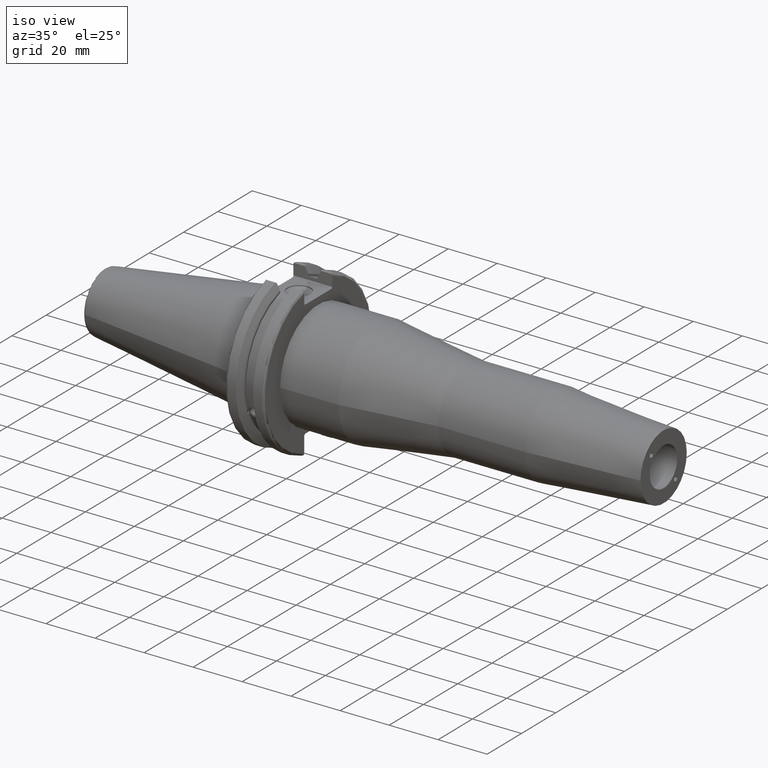
[diagram: clean part render]
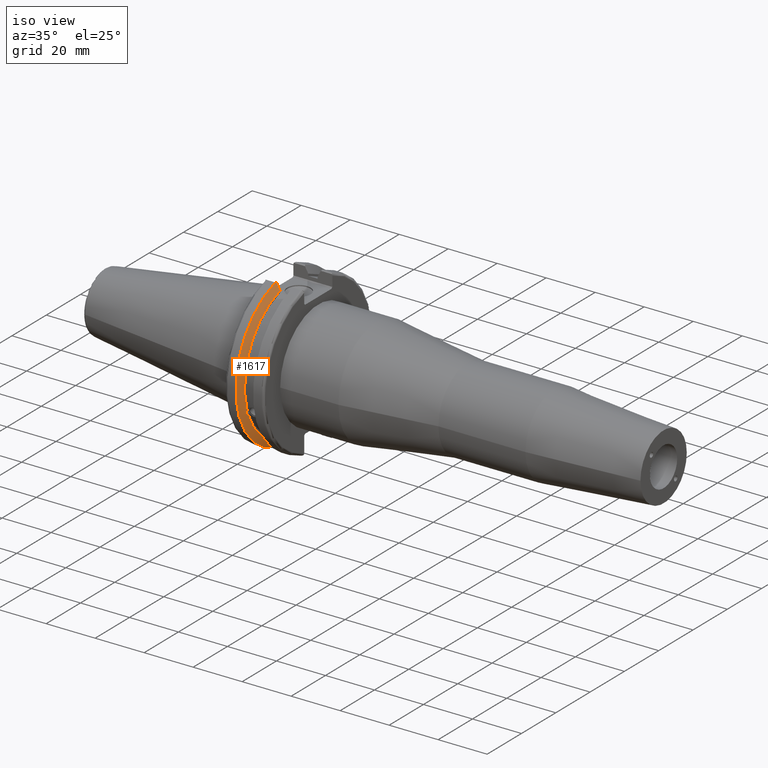
[diagram: same view with one face highlighted and labeled with its STEP entity id]
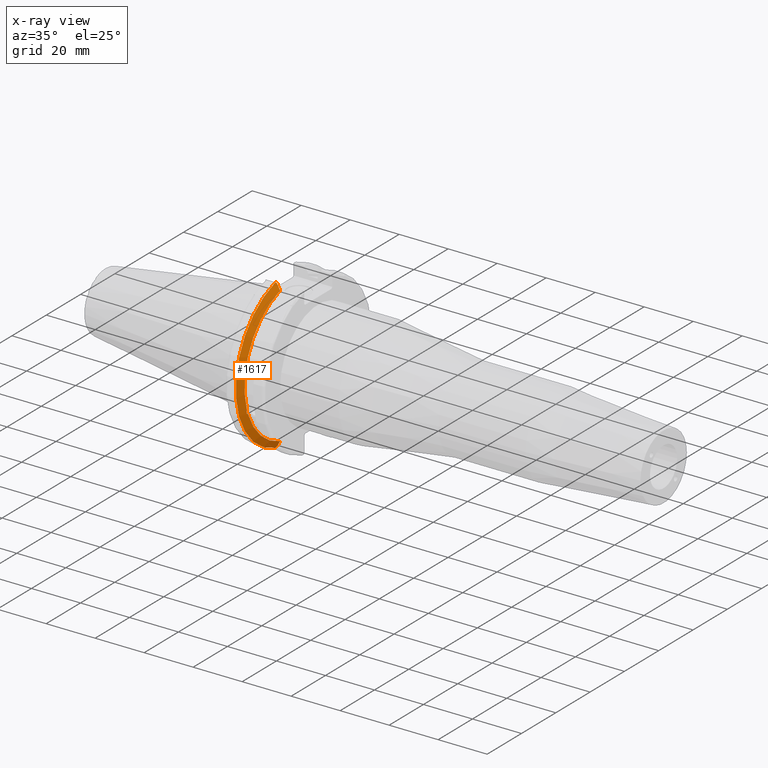
[diagram: x-ray of the same camera — body ghosted, the highlighted face saturated]
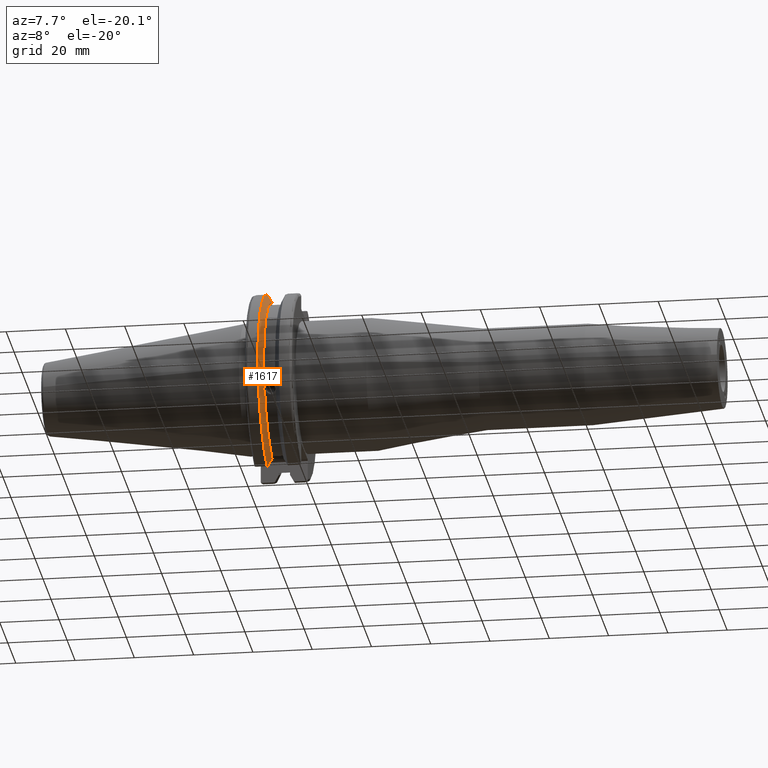
[diagram: same view with one face highlighted and labeled with its STEP entity id]
A machine part, iso view. The second image highlights one B-rep face of the part: STEP entity #1617.
The next image is the same camera in x-ray: the body ghosted, the highlighted face saturated — about 0% of this face is hidden behind the body in this view.
A second angle (auxiliary view) of the same face is appended — the face is thin or edge-on in the first view.
In plain terms, the highlighted conical surface has half-angle 60 deg.
Its self-contained STEP definition (entity closure, byte-faithful):
#31=(
BOUNDED_CURVE()
B_SPLINE_CURVE(2,(#2903,#2904,#2905),.UNSPECIFIED.,.F.,.F.)
B_SPLINE_CURVE_WITH_KNOTS((3,3),(0.,0.276549142796136),.UNSPECIFIED.)
CURVE()
GEOMETRIC_REPRESENTATION_ITEM()
RATIONAL_B_SPLINE_CURVE((1.,1.00095203903316,1.00031614444813))
REPRESENTATION_ITEM('')
);
#32=(
BOUNDED_CURVE()
B_SPLINE_CURVE(2,(#2915,#2916,#2917),.UNSPECIFIED.,.F.,.F.)
B_SPLINE_CURVE_WITH_KNOTS((3,3),(0.0550586467392022,0.33160778953585),
 .UNSPECIFIED.)
CURVE()
GEOMETRIC_REPRESENTATION_ITEM()
RATIONAL_B_SPLINE_CURVE((1.00031614445148,1.00095203904325,1.))
REPRESENTATION_ITEM('')
);
#33=(
BOUNDED_CURVE()
B_SPLINE_CURVE(2,(#2950,#2951,#2952),.UNSPECIFIED.,.F.,.F.)
B_SPLINE_CURVE_WITH_KNOTS((3,3),(0.,0.0639048713676282),.UNSPECIFIED.)
CURVE()
GEOMETRIC_REPRESENTATION_ITEM()
RATIONAL_B_SPLINE_CURVE((1.,1.00028444218284,1.00047644010574))
REPRESENTATION_ITEM('')
);
#34=(
BOUNDED_CURVE()
B_SPLINE_CURVE(2,(#2958,#2959,#2960),.UNSPECIFIED.,.F.,.F.)
B_SPLINE_CURVE_WITH_KNOTS((3,3),(0.329353533631205,0.393258405001025),
 .UNSPECIFIED.)
CURVE()
GEOMETRIC_REPRESENTATION_ITEM()
RATIONAL_B_SPLINE_CURVE((1.00047644010572,1.00028444218283,1.))
REPRESENTATION_ITEM('')
);
#98=B_SPLINE_CURVE_WITH_KNOTS('',3,(#2496,#2497,#2498,#2499,#2500,#2501,
#2502,#2503,#2504,#2505,#2506,#2507,#2508,#2509),.UNSPECIFIED.,.F.,.F.,
(4,2,2,2,2,2,4),(0.451995700189024,0.464547828547663,0.504528771685167,
0.544509714822672,0.584490657960178,0.624471601097683,0.63702372945632),
 .UNSPECIFIED.);
#263=FACE_OUTER_BOUND('',#372,.T.);
#372=EDGE_LOOP('',(#1500,#1501,#1502,#1503,#1504,#1505,#1506,#1507));
#602=CIRCLE('',#1712,28.9593772964944);
#626=CIRCLE('',#1771,31.75);
#644=CIRCLE('',#1822,28.9593772964944);
#683=VERTEX_POINT('',#2493);
#684=VERTEX_POINT('',#2495);
#701=VERTEX_POINT('',#2588);
#773=VERTEX_POINT('',#2900);
#774=VERTEX_POINT('',#2902);
#777=VERTEX_POINT('',#2914);
#781=VERTEX_POINT('',#2948);
#782=VERTEX_POINT('',#2954);
#857=EDGE_CURVE('',#684,#683,#98,.T.);
#881=EDGE_CURVE('',#684,#701,#602,.T.);
#976=EDGE_CURVE('',#774,#773,#31,.T.);
#982=EDGE_CURVE('',#777,#701,#32,.T.);
#990=EDGE_CURVE('',#781,#773,#33,.T.);
#992=EDGE_CURVE('',#781,#782,#626,.T.);
#993=EDGE_CURVE('',#777,#782,#34,.T.);
#1037=EDGE_CURVE('',#774,#683,#644,.T.);
#1500=ORIENTED_EDGE('',*,*,#857,.T.);
#1501=ORIENTED_EDGE('',*,*,#1037,.F.);
#1502=ORIENTED_EDGE('',*,*,#976,.T.);
#1503=ORIENTED_EDGE('',*,*,#990,.F.);
#1504=ORIENTED_EDGE('',*,*,#992,.T.);
#1505=ORIENTED_EDGE('',*,*,#993,.F.);
#1506=ORIENTED_EDGE('',*,*,#982,.T.);
#1507=ORIENTED_EDGE('',*,*,#881,.F.);
#1527=CONICAL_SURFACE('',#1821,30.3546886482472,1.0471975511966);
#1617=ADVANCED_FACE('',(#263),#1527,.T.);
#1712=AXIS2_PLACEMENT_3D('',#2589,#1994,#1995);
#1771=AXIS2_PLACEMENT_3D('',#2956,#2163,#2164);
#1821=AXIS2_PLACEMENT_3D('',#3076,#2284,#2285);
#1822=AXIS2_PLACEMENT_3D('',#3077,#2286,#2287);
#1994=DIRECTION('center_axis',(1.,0.,0.));
#1995=DIRECTION('ref_axis',(0.,0.,-1.));
#2163=DIRECTION('center_axis',(1.,0.,0.));
#2164=DIRECTION('ref_axis',(0.,0.,-1.));
#2284=DIRECTION('center_axis',(-1.,0.,0.));
#2285=DIRECTION('ref_axis',(0.,-1.,-1.22464679914735E-16));
#2286=DIRECTION('center_axis',(1.,0.,0.));
#2287=DIRECTION('ref_axis',(0.,0.,-1.));
#2493=CARTESIAN_POINT('',(9.2191,-27.4956274489925,-9.09043478536245));
#2495=CARTESIAN_POINT('',(9.2191,-26.9060914640648,-10.7101715919071));
#2496=CARTESIAN_POINT('Ctrl Pts',(9.2191,-26.9060914640648,-10.7101715919071));
#2497=CARTESIAN_POINT('Ctrl Pts',(9.20497959280038,-26.9406927482839,-10.6893765730703));
#2498=CARTESIAN_POINT('Ctrl Pts',(9.19150701821433,-26.9744191989197,-10.6676007180673));
#2499=CARTESIAN_POINT('Ctrl Pts',(9.13811855884095,-27.1113422433189,-10.5723885976054));
#2500=CARTESIAN_POINT('Ctrl Pts',(9.09998029158246,-27.2180531796526,-10.4801333026531));
#2501=CARTESIAN_POINT('Ctrl Pts',(9.04778935539424,-27.3968610665578,-10.2639559818059));
#2502=CARTESIAN_POINT('Ctrl Pts',(9.0341,-27.4684373304961,-10.139516340139));
#2503=CARTESIAN_POINT('Ctrl Pts',(9.0341,-27.559599249844,-9.8890510252165));
#2504=CARTESIAN_POINT('Ctrl Pts',(9.04778935539424,-27.5847569104122,-9.74771639360671));
#2505=CARTESIAN_POINT('Ctrl Pts',(9.09998029158246,-27.5867382255984,-9.46717946402648));
#2506=CARTESIAN_POINT('Ctrl Pts',(9.13811855884095,-27.5642934663232,-9.32791534028655));
#2507=CARTESIAN_POINT('Ctrl Pts',(9.19150701821434,-27.5206055003512,-9.16696618806877));
#2508=CARTESIAN_POINT('Ctrl Pts',(9.20497959280038,-27.5087667900418,-9.12860597076217));
#2509=CARTESIAN_POINT('Ctrl Pts',(9.2191,-27.4956274489925,-9.09043478536245));
#2588=CARTESIAN_POINT('',(9.2191,-8.19,-27.7771386827498));
#2589=CARTESIAN_POINT('Origin',(9.2191,0.,0.));
#2900=CARTESIAN_POINT('',(7.88668530351257,-8.19,30.1755016258903));
#2902=CARTESIAN_POINT('',(9.2191,-8.19,27.7771386827498));
#2903=CARTESIAN_POINT('Ctrl Pts',(9.2191,-8.19,27.7771386827498));
#2904=CARTESIAN_POINT('Ctrl Pts',(8.58046356152393,-8.19,28.9303689539705));
#2905=CARTESIAN_POINT('Ctrl Pts',(7.88668530351257,-8.19,30.1755016258903));
#2914=CARTESIAN_POINT('',(7.88668530351256,-8.19,-30.1755016258903));
#2915=CARTESIAN_POINT('Ctrl Pts',(7.88668530351256,-8.19,-30.1755016258903));
#2916=CARTESIAN_POINT('Ctrl Pts',(8.5804635615235,-8.19,-28.9303689539712));
#2917=CARTESIAN_POINT('Ctrl Pts',(9.2191,-8.19,-27.7771386827498));
#2948=CARTESIAN_POINT('',(7.60793323092436,-8.67204822802685,30.5427254764662));
#2950=CARTESIAN_POINT('Ctrl Pts',(7.60793323092436,-8.67204822802686,30.5427254764662));
#2951=CARTESIAN_POINT('Ctrl Pts',(7.74899148121626,-8.42917748262648,30.357706789263));
#2952=CARTESIAN_POINT('Ctrl Pts',(7.88668530351257,-8.19,30.1755016258903));
#2954=CARTESIAN_POINT('',(7.60793323092436,-8.67204822802685,-30.5427254764662));
#2956=CARTESIAN_POINT('Origin',(7.60793323092436,0.,0.));
#2958=CARTESIAN_POINT('Ctrl Pts',(7.88668530351256,-8.19,-30.1755016258903));
#2959=CARTESIAN_POINT('Ctrl Pts',(7.74899148121159,-8.42917748263467,-30.3577067892692));
#2960=CARTESIAN_POINT('Ctrl Pts',(7.60793323092435,-8.67204822802687,-30.5427254764662));
#3076=CARTESIAN_POINT('Origin',(8.41351661546218,0.,0.));
#3077=CARTESIAN_POINT('Origin',(9.2191,0.,0.));